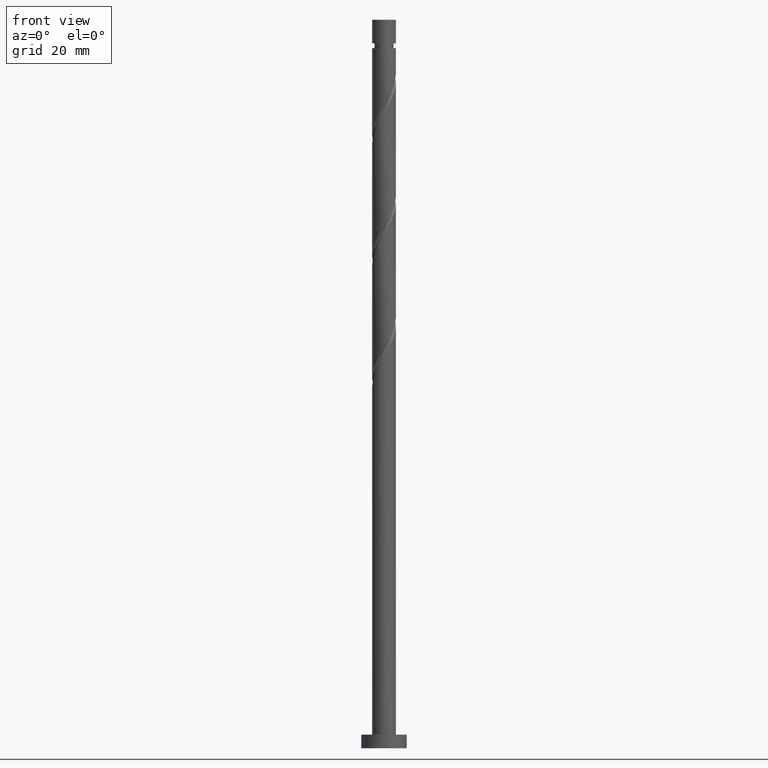
[diagram: clean part render]
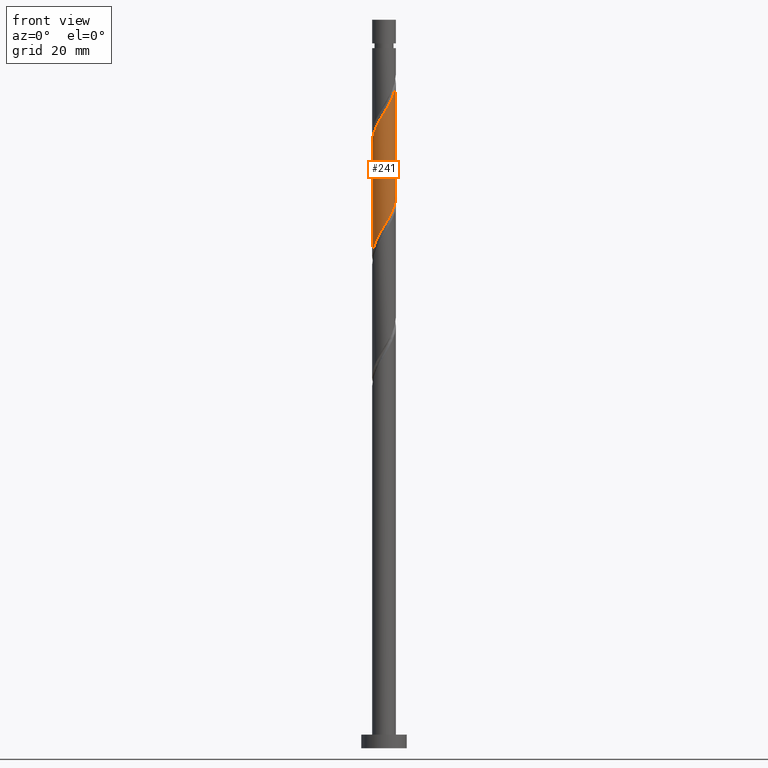
[diagram: same view with one face highlighted and labeled with its STEP entity id]
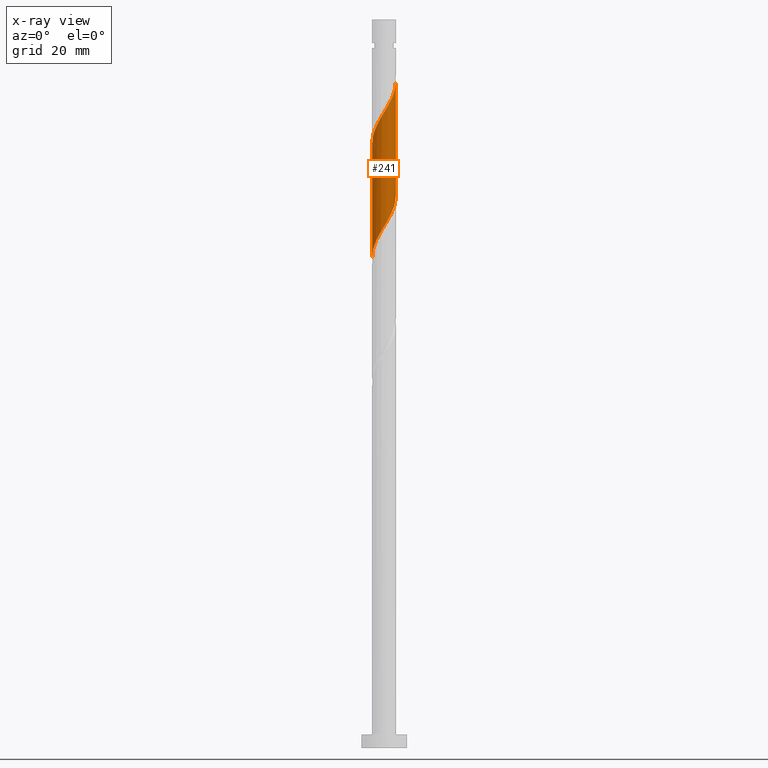
[diagram: x-ray of the same camera — body ghosted, the highlighted face saturated]
A machine part, front view. The second image highlights one B-rep face of the part: STEP entity #241.
The next image is the same camera in x-ray: the body ghosted, the highlighted face saturated — about 0% of this face is hidden behind the body in this view.
In plain terms, the highlighted cylindrical surface (edge-blend (fillet) strip) has radius 2.6 mm, axis along (-0, -0, -1).
Its self-contained STEP definition (entity closure, byte-faithful):
#44 = CARTESIAN_POINT ( 'NONE',  ( 2.574201661218915138, -0.5227139415289437929, 120.4332251452001969 ) ) ;
#62 = CARTESIAN_POINT ( 'NONE',  ( -0.8837405603946362209, -2.473610049948115730, 113.1604978724729449 ) ) ;
#72 = EDGE_CURVE ( 'NONE', #425, #1401, #999, .T. ) ;
#91 = CARTESIAN_POINT ( 'NONE',  ( 2.600000000000003642, -4.487046211048901510E-16, 146.2504373325659230 ) ) ;
#110 = CARTESIAN_POINT ( 'NONE',  ( 2.532675338106944007, -0.5878398010894598791, 145.2817099936850695 ) ) ;
#163 = CARTESIAN_POINT ( 'NONE',  ( 2.102809310219684313, -1.529115105168154187, 118.6150433270183981 ) ) ;
#179 = CARTESIAN_POINT ( 'NONE',  ( 2.600000000000003642, -4.487046211048901510E-16, 146.2504373325659515 ) ) ;
#183 = CARTESIAN_POINT ( 'NONE',  ( 1.882955749076662855, -1.831453440388286724, 118.0089827209577749 ) ) ;
#216 = CARTESIAN_POINT ( 'NONE',  ( 0.1510463741962521089, -2.622389950051887020, 139.8271645391396021 ) ) ;
#225 = CARTESIAN_POINT ( 'NONE',  ( 0.8837405603946367760, -2.473610049948121503, 141.0392857512608202 ) ) ;
#241 = ADVANCED_FACE ( 'NONE', ( #1655 ), #1026, .T. ) ;
#280 = CARTESIAN_POINT ( 'NONE',  ( -1.812811885102929566, -1.863789974549053596, 111.3423160542911177 ) ) ;
#287 = CARTESIAN_POINT ( 'NONE',  ( -2.600000000000003642, -0.07481636896194515662, 133.0392020039509191 ) ) ;
#291 = CARTESIAN_POINT ( 'NONE',  ( -2.600000000000000977, -0.2977752112013163921, 108.4353062441390847 ) ) ;
#308 = CARTESIAN_POINT ( 'NONE',  ( 0.9422937206507956409, -2.423238028758644802, 116.1908009027759761 ) ) ;
#343 = CARTESIAN_POINT ( 'NONE',  ( -1.290702750369458363, -2.287756645161299840, 137.4029221148971942 ) ) ;
#351 = CARTESIAN_POINT ( 'NONE',  ( 0.5173934672954443315, -2.548000000000002707, 140.4332251452001969 ) ) ;
#415 = ORIENTED_EDGE ( 'NONE', *, *, #72, .F. ) ;
#425 = VERTEX_POINT ( 'NONE', #179 ) ;
#463 = CARTESIAN_POINT ( 'NONE',  ( 2.600000000000000089, 3.184081677783118191E-16, 160.0000000000000000 ) ) ;
#473 = DIRECTION ( 'NONE',  ( -0.000000000000000000, -0.000000000000000000, -1.000000000000000000 ) ) ;
#493 = CARTESIAN_POINT ( 'NONE',  ( 2.448156734363956755, -0.9519835404456181704, 144.6756493876244463 ) ) ;
#517 = DIRECTION ( 'NONE',  ( -1.000000000000000000, 0.000000000000000000, 0.000000000000000000 ) ) ;
#525 = VECTOR ( 'NONE', #1511, 1000.000000000000000 ) ;
#548 = CARTESIAN_POINT ( 'NONE',  ( 2.600000000000000533, 2.595008392056634366E-15, 121.2826796245011423 ) ) ;
#559 = CARTESIAN_POINT ( 'NONE',  ( 1.290702750369455254, -2.287756645161296731, 116.7968615088365567 ) ) ;
#597 = CARTESIAN_POINT ( 'NONE',  ( 2.264470581186242448, -1.277565257410382626, 144.0695887815638230 ) ) ;
#604 = CARTESIAN_POINT ( 'NONE',  ( -2.600000000000000089, 0.000000000000000000, 160.0000000000000000 ) ) ;
#612 = CARTESIAN_POINT ( 'NONE',  ( 1.544839342197333876, -2.124432974722969103, 142.2514069633820384 ) ) ;
#673 = CARTESIAN_POINT ( 'NONE',  ( 0.5938846909321360279, -2.558719412355991096, 115.5847402967153528 ) ) ;
#691 = CARTESIAN_POINT ( 'NONE',  ( -0.1510463741962530249, -2.622389950051882579, 114.3726190845941488 ) ) ;
#698 = ORIENTED_EDGE ( 'NONE', *, *, #867, .F. ) ;
#735 = CARTESIAN_POINT ( 'NONE',  ( 2.600000000000000089, -0.2977752112013347108, 145.7644773795946094 ) ) ;
#746 = CARTESIAN_POINT ( 'NONE',  ( 2.080784428008529474, -1.603146974375146749, 143.4635281755032281 ) ) ;
#796 = CARTESIAN_POINT ( 'NONE',  ( -2.595697801534425420, -0.1495089398978212691, 133.1604978724729165 ) ) ;
#800 = CARTESIAN_POINT ( 'NONE',  ( 2.595697801534421423, -0.1495089398978222128, 121.0392857512608487 ) ) ;
#808 = CARTESIAN_POINT ( 'NONE',  ( 2.600000000000000089, -0.07481636896193828712, 121.1605816197829029 ) ) ;
#856 = CARTESIAN_POINT ( 'NONE',  ( -0.5938846909321369161, -2.558719412355995981, 138.6150433270184124 ) ) ;
#866 = CARTESIAN_POINT ( 'NONE',  ( -2.322662871362709769, -1.226776769948022761, 134.9786796906547863 ) ) ;
#867 = EDGE_CURVE ( 'NONE', #1401, #1513, #1084, .T. ) ;
#919 = CARTESIAN_POINT ( 'NONE',  ( -1.544839342197330989, -2.124432974722964662, 111.9483766603517267 ) ) ;
#925 = CARTESIAN_POINT ( 'NONE',  ( 1.586829249723058943, -2.059605042774792949, 117.4029221148971942 ) ) ;
#966 = LINE ( 'NONE', #604, #1500 ) ;
#999 = LINE ( 'NONE', #463, #525 ) ;
#1026 = CYLINDRICAL_SURFACE ( 'NONE', #1301, 2.600000000000000089 ) ;
#1050 = CARTESIAN_POINT ( 'NONE',  ( 0.2214191583679407382, -2.590554681203937282, 114.9786796906547579 ) ) ;
#1061 = CARTESIAN_POINT ( 'NONE',  ( -0.5173934672954447755, -2.548000000000000043, 113.7665584785335398 ) ) ;
#1071 = CARTESIAN_POINT ( 'NONE',  ( -2.599999999999999645, 4.098168872758026045E-15, 107.9493462911677426 ) ) ;
#1084 =( BOUNDED_CURVE ( )  B_SPLINE_CURVE ( 2, ( #548, #808, #800, #44, #1207, #1333, #163, #183, #925, #559, #308, #673, #1050, #691, #1061, #62, #1435, #919, #280, #1444, #1588, #1578, #1453, #291, #1071 ),
 .UNSPECIFIED., .F., .T. ) 
 B_SPLINE_CURVE_WITH_KNOTS ( ( 3, 2, 2, 2, 2, 2, 2, 2, 2, 2, 2, 2, 3 ),
 ( 0.5545252162417512176, 0.5568181818181817677, 0.5681818181818182323, 0.5795454545454545858, 0.5909090909090909394, 0.6022727272727272929, 0.6136363636363636465, 0.6250000000000000000, 0.6363636363636363535, 0.6477272727272727071, 0.6590909090909090606, 0.6704545454545454142, 0.6795252162417513286 ),
 .UNSPECIFIED. ) 
 CURVE ( )  GEOMETRIC_REPRESENTATION_ITEM ( )  RATIONAL_B_SPLINE_CURVE ( ( 0.9061101570135583483, 0.9072237824201405676, 0.9090909090909180534, 0.8998376744372204028, 0.9090909090909180534, 0.8998376744372204028, 0.9090909090909180534, 0.8998376744372204028, 0.9090909090909180534, 0.8998376744372204028, 0.9090909090909180534, 0.8998376744372204028, 0.9090909090909180534, 0.8998376744372204028, 0.9090909090909180534, 0.8998376744372204028, 0.9090909090909180534, 0.8998376744372204028, 0.9090909090909180534, 0.8998376744372204028, 0.9090909090909180534, 0.8998376744372204028, 0.9090909090909180534, 0.9017048011079978886, 0.9061101570135584593 ) ) 
 REPRESENTATION_ITEM ( '' )  );
#1099 = CARTESIAN_POINT ( 'NONE',  ( -1.586829249723061608, -2.059605042774794281, 136.7968615088365425 ) ) ;
#1107 = CARTESIAN_POINT ( 'NONE',  ( -2.102809310219688310, -1.529115105168155964, 135.5847402967153528 ) ) ;
#1111 = VERTEX_POINT ( 'NONE', #1212 ) ;
#1139 = EDGE_CURVE ( 'NONE', #1111, #425, #1429, .T. ) ;
#1166 = EDGE_CURVE ( 'NONE', #1111, #1513, #966, .T. ) ;
#1179 = CARTESIAN_POINT ( 'NONE',  ( 0.000000000000000000, 0.000000000000000000, 160.0000000000000000 ) ) ;
#1190 = CARTESIAN_POINT ( 'NONE',  ( -2.448432266290815118, -0.8747453557384828882, 134.3726190845941346 ) ) ;
#1207 = CARTESIAN_POINT ( 'NONE',  ( 2.448432266290810677, -0.8747453557384825551, 119.8271645391396021 ) ) ;
#1212 = CARTESIAN_POINT ( 'NONE',  ( -2.600000000000004086, 3.933643845019537576E-15, 132.9171039992326655 ) ) ;
#1235 = CARTESIAN_POINT ( 'NONE',  ( -0.2214191583679423481, -2.590554681203940390, 139.2211039330789788 ) ) ;
#1301 = AXIS2_PLACEMENT_3D ( 'NONE', #1179, #1400, #517 ) ;
#1315 = CARTESIAN_POINT ( 'NONE',  ( -2.574201661218919135, -0.5227139415289436819, 133.7665584785335398 ) ) ;
#1333 = CARTESIAN_POINT ( 'NONE',  ( 2.322662871362705328, -1.226776769948020984, 119.2211039330789930 ) ) ;
#1348 = CARTESIAN_POINT ( 'NONE',  ( -2.600000000000004530, 3.933643845019537576E-15, 132.9171039992326655 ) ) ;
#1356 = CARTESIAN_POINT ( 'NONE',  ( -1.882955749076666407, -1.831453440388289389, 136.1908009027759761 ) ) ;
#1400 = DIRECTION ( 'NONE',  ( -0.000000000000000000, -0.000000000000000000, -1.000000000000000000 ) ) ;
#1401 = VERTEX_POINT ( 'NONE', #1466 ) ;
#1403 = ORIENTED_EDGE ( 'NONE', *, *, #1166, .T. ) ;
#1429 =( BOUNDED_CURVE ( )  B_SPLINE_CURVE ( 2, ( #1348, #287, #796, #1315, #1190, #866, #1107, #1356, #1099, #343, #1481, #856, #1235, #216, #351, #225, #1628, #612, #1650, #746, #597, #493, #110, #735, #91 ),
 .UNSPECIFIED., .F., .T. ) 
 B_SPLINE_CURVE_WITH_KNOTS ( ( 3, 2, 2, 2, 2, 2, 2, 2, 2, 2, 2, 2, 3 ),
 ( 0.5545252162417515507, 0.5568181818181818787, 0.5681818181818181213, 0.5795454545454545858, 0.5909090909090908283, 0.6022727272727272929, 0.6136363636363636465, 0.6250000000000000000, 0.6363636363636363535, 0.6477272727272727071, 0.6590909090909091717, 0.6704545454545454142, 0.6795252162417508845 ),
 .UNSPECIFIED. ) 
 CURVE ( )  GEOMETRIC_REPRESENTATION_ITEM ( )  RATIONAL_B_SPLINE_CURVE ( ( 0.9061101570135652317, 0.9072237824201473400, 0.9090909090909247148, 0.8998376744372269531, 0.9090909090909247148, 0.8998376744372269531, 0.9090909090909247148, 0.8998376744372269531, 0.9090909090909247148, 0.8998376744372269531, 0.9090909090909247148, 0.8998376744372269531, 0.9090909090909247148, 0.8998376744372269531, 0.9090909090909247148, 0.8998376744372269531, 0.9090909090909247148, 0.8998376744372269531, 0.9090909090909247148, 0.8998376744372269531, 0.9090909090909247148, 0.8998376744372269531, 0.9090909090909247148, 0.9017048011080048830, 0.9061101570135645655 ) ) 
 REPRESENTATION_ITEM ( '' )  );
#1434 = CARTESIAN_POINT ( 'NONE',  ( -2.599999999999999645, 4.098168872758026045E-15, 107.9493462911677426 ) ) ;
#1435 = CARTESIAN_POINT ( 'NONE',  ( -1.214289951295983716, -2.299021512335540418, 112.5544372664123642 ) ) ;
#1444 = CARTESIAN_POINT ( 'NONE',  ( -2.080784428008527254, -1.603146974375142975, 110.7362554482305086 ) ) ;
#1453 = CARTESIAN_POINT ( 'NONE',  ( -2.532675338106940455, -0.5878398010894585468, 108.9180736300487098 ) ) ;
#1466 = CARTESIAN_POINT ( 'NONE',  ( 2.600000000000000533, 2.595008392056634366E-15, 121.2826796245011423 ) ) ;
#1481 = CARTESIAN_POINT ( 'NONE',  ( -0.9422937206507979724, -2.423238028758646578, 138.0089827209577606 ) ) ;
#1500 = VECTOR ( 'NONE', #473, 1000.000000000000000 ) ;
#1505 = ORIENTED_EDGE ( 'NONE', *, *, #1139, .F. ) ;
#1511 = DIRECTION ( 'NONE',  ( -0.000000000000000000, -0.000000000000000000, -1.000000000000000000 ) ) ;
#1513 = VERTEX_POINT ( 'NONE', #1434 ) ;
#1556 = EDGE_LOOP ( 'NONE', ( #415, #1505, #1403, #698 ) ) ;
#1578 = CARTESIAN_POINT ( 'NONE',  ( -2.448156734363953202, -0.9519835404456163941, 109.5241342361092904 ) ) ;
#1588 = CARTESIAN_POINT ( 'NONE',  ( -2.264470581186239340, -1.277565257410379962, 110.1301948421698995 ) ) ;
#1628 = CARTESIAN_POINT ( 'NONE',  ( 1.214289951295984382, -2.299021512335544859, 141.6453463573214151 ) ) ;
#1650 = CARTESIAN_POINT ( 'NONE',  ( 1.812811885102930898, -1.863789974549057371, 142.8574675694426048 ) ) ;
#1655 = FACE_OUTER_BOUND ( 'NONE', #1556, .T. ) ;